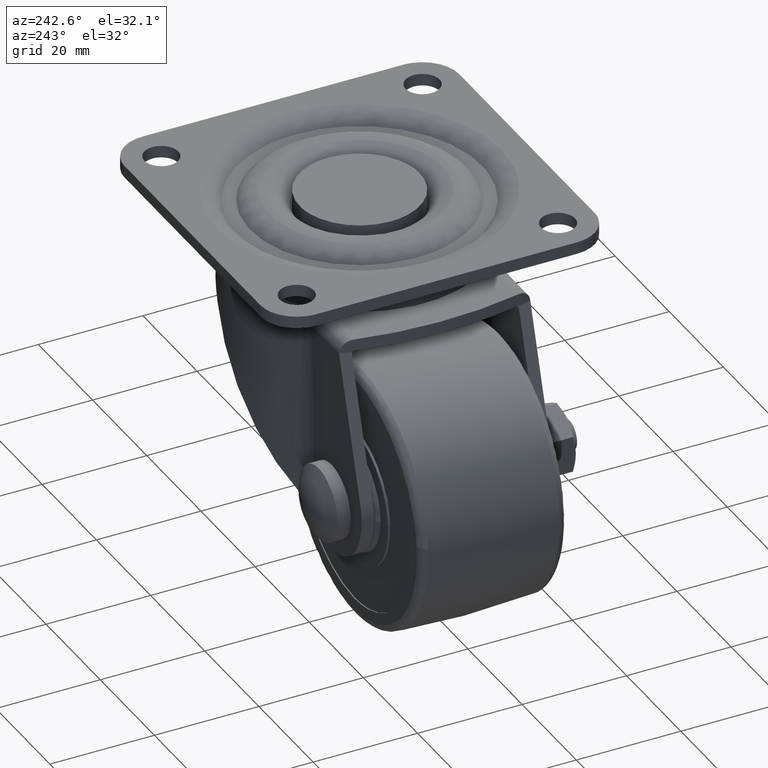
[diagram: clean part render]
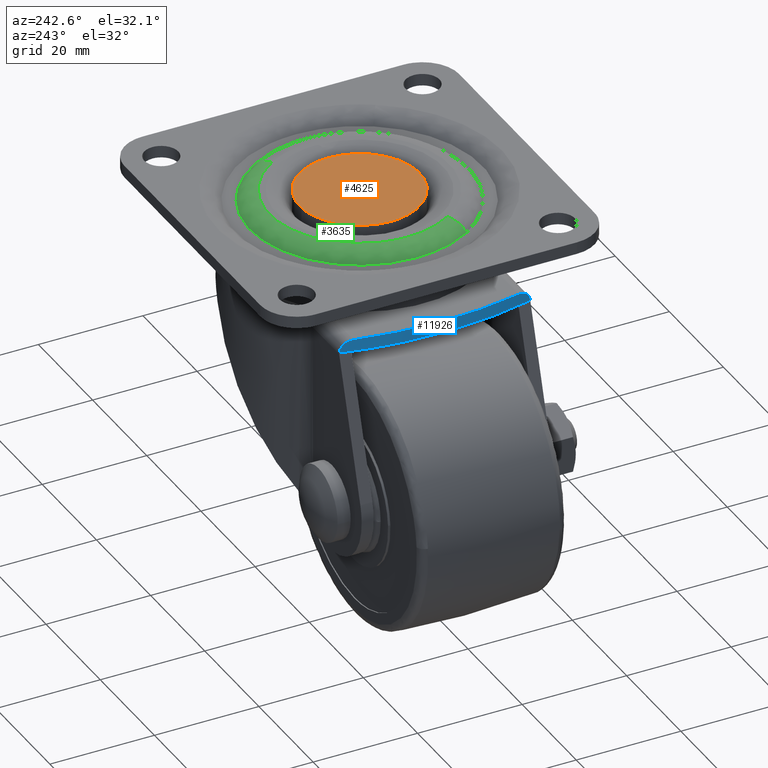
[diagram: same view with three faces highlighted in distinct colors, each labeled with its STEP entity id]
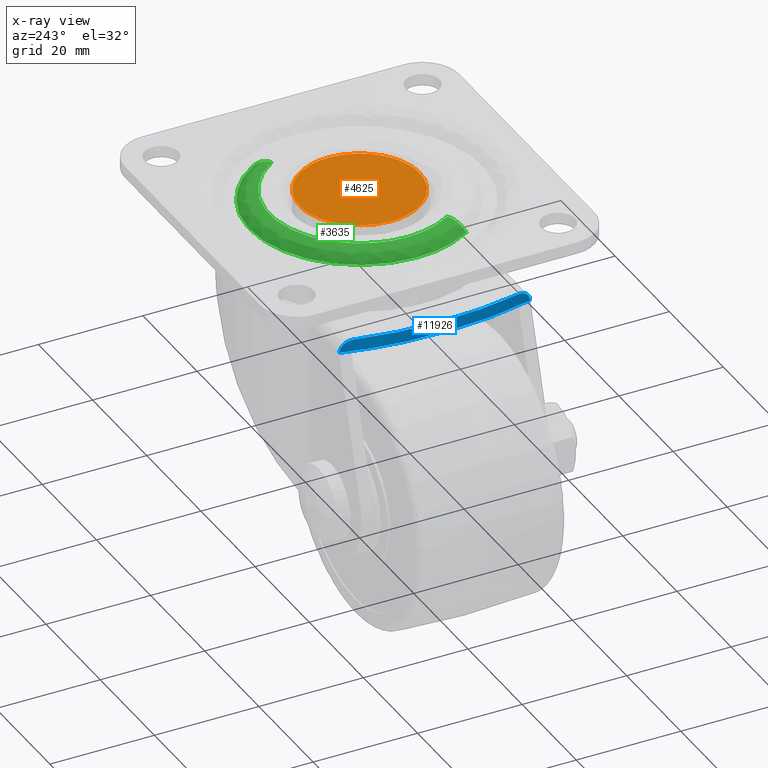
[diagram: x-ray of the same camera — body ghosted, the three highlighted faces saturated]
A machine part, auxiliary view with three faces highlighted in distinct colors.
The next image is the same camera in x-ray (body ghosted, the three faces saturated) — at least one of them is partly hidden behind the body in this view.
Their STEP definitions:

[orange] entity #4625 — the highlighted face is a freeform B-spline surface patch.
#4554=CARTESIAN_POINT('',(-12.648849955421539,-12.648566954055649,0.0));
#4555=CARTESIAN_POINT('',(12.648850572329611,-12.648566954055649,0.0));
#4556=CARTESIAN_POINT('',(-12.648849955421539,12.648566542783600,0.0));
#4557=CARTESIAN_POINT('',(12.648850572329611,12.648566542783600,0.0));
#4558=B_SPLINE_SURFACE_WITH_KNOTS('',1,1,((#4554,#4556),(#4555,#4557)),.UNSPECIFIED.,.F.,.F.,.U.,(2,2),(2,2),(0.0,25.297700527751150),(0.0,25.297133496839241),.UNSPECIFIED.);
#4559=CARTESIAN_POINT('',(0.702037677066017,-11.478551437335501,-3.885781E-016));
#4560=VERTEX_POINT('',#4559);
#4561=CARTESIAN_POINT('',(-11.500000000000000,0.0,0.0));
#4562=VERTEX_POINT('',#4561);
#4563=CARTESIAN_POINT('',(0.702037677066017,-11.478551437335495,-3.885781E-016));
#4564=CARTESIAN_POINT('',(0.351346485362978,-11.499999999981906,-3.829941E-016));
#4565=CARTESIAN_POINT('',(-1.088406E-012,-11.499999999982190,-3.770582E-016));
#4566=CARTESIAN_POINT('',(-11.500000000000526,-11.499999999991365,-1.827692E-016));
#4567=CARTESIAN_POINT('',(-11.500000000000000,0.0,0.0));
#4575=(BOUNDED_CURVE()B_SPLINE_CURVE(2,(#4563,#4564,#4565,#4566,#4567),.UNSPECIFIED.,.F.,.U.)B_SPLINE_CURVE_WITH_KNOTS((3,2,3),(0.739333270814883,0.750000000000000,1.0),.UNSPECIFIED.)CURVE()GEOMETRIC_REPRESENTATION_ITEM()RATIONAL_B_SPLINE_CURVE((0.976072703004588,0.987503149419038,1.0,0.707106781186548,1.0))REPRESENTATION_ITEM(''));
#4576=EDGE_CURVE('',#4560,#4562,#4575,.T.);
#4577=ORIENTED_EDGE('',*,*,#4576,.F.);
#4578=CARTESIAN_POINT('',(11.500000000000000,0.0,0.0));
#4579=VERTEX_POINT('',#4578);
#4580=CARTESIAN_POINT('',(11.500000000000000,0.0,0.0));
#4581=CARTESIAN_POINT('',(11.499999999999439,-10.818139152081802,-1.942890E-016));
#4582=CARTESIAN_POINT('',(0.702037677066017,-11.478551437335495,-3.885781E-016));
#4590=(BOUNDED_CURVE()B_SPLINE_CURVE(2,(#4580,#4581,#4582),.UNSPECIFIED.,.F.,.U.)B_SPLINE_CURVE_WITH_KNOTS((3,3),(0.500000000000000,0.739333270814883),.UNSPECIFIED.)CURVE()GEOMETRIC_REPRESENTATION_ITEM()RATIONAL_B_SPLINE_CURVE((1.0,0.719603631767509,0.976072703004588))REPRESENTATION_ITEM(''));
#4591=EDGE_CURVE('',#4579,#4560,#4590,.T.);
#4592=ORIENTED_EDGE('',*,*,#4591,.F.);
#4593=CARTESIAN_POINT('',(-0.702037677066017,11.478551437335501,-3.885781E-016));
#4594=VERTEX_POINT('',#4593);
#4595=CARTESIAN_POINT('',(-0.702037677066017,11.478551437335495,-3.885781E-016));
#4596=CARTESIAN_POINT('',(-0.351346485362977,11.499999999981906,-3.829941E-016));
#4597=CARTESIAN_POINT('',(1.090129E-012,11.499999999982190,-3.770582E-016));
#4598=CARTESIAN_POINT('',(11.500000000000526,11.499999999991365,-1.827692E-016));
#4599=CARTESIAN_POINT('',(11.500000000000000,0.0,0.0));
#4607=(BOUNDED_CURVE()B_SPLINE_CURVE(2,(#4595,#4596,#4597,#4598,#4599),.UNSPECIFIED.,.F.,.U.)B_SPLINE_CURVE_WITH_KNOTS((3,2,3),(0.239333270814883,0.250000000000000,0.500000000000000),.UNSPECIFIED.)CURVE()GEOMETRIC_REPRESENTATION_ITEM()RATIONAL_B_SPLINE_CURVE((0.976072703004588,0.987503149419038,1.0,0.707106781186548,1.0))REPRESENTATION_ITEM(''));
#4608=EDGE_CURVE('',#4594,#4579,#4607,.T.);
#4609=ORIENTED_EDGE('',*,*,#4608,.F.);
#4610=CARTESIAN_POINT('',(-11.500000000000000,0.0,0.0));
#4611=CARTESIAN_POINT('',(-11.499999999999437,10.818139152081800,-1.942890E-016));
#4612=CARTESIAN_POINT('',(-0.702037677066017,11.478551437335495,-3.885781E-016));
#4620=(BOUNDED_CURVE()B_SPLINE_CURVE(2,(#4610,#4611,#4612),.UNSPECIFIED.,.F.,.U.)B_SPLINE_CURVE_WITH_KNOTS((3,3),(0.0,0.239333270814883),.UNSPECIFIED.)CURVE()GEOMETRIC_REPRESENTATION_ITEM()RATIONAL_B_SPLINE_CURVE((1.0,0.719603631767509,0.976072703004588))REPRESENTATION_ITEM(''));
#4621=EDGE_CURVE('',#4562,#4594,#4620,.T.);
#4622=ORIENTED_EDGE('',*,*,#4621,.F.);
#4623=EDGE_LOOP('',(#4577,#4592,#4609,#4622));
#4624=FACE_OUTER_BOUND('',#4623,.T.);
#4625=ADVANCED_FACE('',(#4624),#4558,.T.);

[blue] entity #11926 — the highlighted face is a freeform B-spline surface patch.
#10395=CARTESIAN_POINT('',(-28.287115102895900,15.800003000000000,-9.799999999999999));
#10396=VERTEX_POINT('',#10395);
#10402=CARTESIAN_POINT('',(-28.287115761093951,-15.800003000000000,-9.799999999999999));
#10403=VERTEX_POINT('',#10402);
#10404=CARTESIAN_POINT('',(-28.287115761093961,-15.800003000000039,-9.799999999999999));
#10405=CARTESIAN_POINT('',(-31.753625819009837,0.000000072204107,-9.799999999999999));
#10406=CARTESIAN_POINT('',(-28.287115102895921,15.800003000000009,-9.799999999999999));
#10414=(BOUNDED_CURVE()B_SPLINE_CURVE(2,(#10404,#10405,#10406),.UNSPECIFIED.,.F.,.U.)CURVE()GEOMETRIC_REPRESENTATION_ITEM()QUASI_UNIFORM_CURVE()RATIONAL_B_SPLINE_CURVE((1.0,0.976767420641760,1.0))REPRESENTATION_ITEM(''));
#10415=EDGE_CURVE('',#10403,#10396,#10414,.T.);
#11148=CARTESIAN_POINT('',(-27.694823644004199,-18.291990158875450,-12.100000000000000));
#11149=VERTEX_POINT('',#11148);
#11150=CARTESIAN_POINT('',(-27.694823644004199,-18.291990158875450,-12.100000000000000));
#11151=CARTESIAN_POINT('',(-27.698079331294000,-18.279278069636899,-11.941608184275280));
#11152=CARTESIAN_POINT('',(-27.705111617788660,-18.251823072319048,-11.787149594436730));
#11153=CARTESIAN_POINT('',(-27.720975801822000,-18.189584163663628,-11.561074317916731));
#11154=CARTESIAN_POINT('',(-27.727155350313360,-18.165303771977339,-11.486657862475870));
#11155=CARTESIAN_POINT('',(-27.741302607532049,-18.109563232415621,-11.339737167524831));
#11156=CARTESIAN_POINT('',(-27.749314054713071,-18.077929192189639,-11.266944496927779));
#11157=CARTESIAN_POINT('',(-27.775526736068379,-17.974077232247119,-11.055810757704190));
#11158=CARTESIAN_POINT('',(-27.795973815432198,-17.892655187663049,-10.923429172277331));
#11159=CARTESIAN_POINT('',(-27.830781029138301,-17.752743149985790,-10.737040943530291));
#11160=CARTESIAN_POINT('',(-27.843077342238161,-17.703122931133830,-10.676955716006340));
#11161=CARTESIAN_POINT('',(-27.869056728442189,-17.597759991056609,-10.560974979711220));
#11162=CARTESIAN_POINT('',(-27.882548410719050,-17.542792364128541,-10.505936491248050));
#11163=CARTESIAN_POINT('',(-27.924368430733391,-17.371490871383902,-10.349528150751039));
#11164=CARTESIAN_POINT('',(-27.954051677119828,-17.248724411066540,-10.256697389991871));
#11165=CARTESIAN_POINT('',(-28.001074124600901,-17.051724435648950,-10.134552409252510));
#11166=CARTESIAN_POINT('',(-28.017246603562040,-16.983564761025800,-10.096559191599191));
#11167=CARTESIAN_POINT('',(-28.049850921718349,-16.845237267856302,-10.027676263472260));
#11168=CARTESIAN_POINT('',(-28.066316721297451,-16.774931457863659,-9.996658555376385));
#11169=CARTESIAN_POINT('',(-28.116155398697341,-16.560668295138878,-9.913609934930140));
#11170=CARTESIAN_POINT('',(-28.149963716022381,-16.413393213445602,-9.871498349639907));
#11171=CARTESIAN_POINT('',(-28.201466156028509,-16.185638662509671,-9.828714486195722));
#11172=CARTESIAN_POINT('',(-28.218730956055740,-16.108726596875659,-9.817931773636706));
#11173=CARTESIAN_POINT('',(-28.253017087508500,-15.954822694396469,-9.803601834278618));
#11174=CARTESIAN_POINT('',(-28.270098341773480,-15.877566680200511,-9.799999999999995));
#11175=CARTESIAN_POINT('',(-28.287115761093951,-15.800003000000000,-9.799999999999999));
#11176=B_SPLINE_CURVE_WITH_KNOTS('',3,(#11150,#11151,#11152,#11153,#11154,#11155,#11156,#11157,#11158,#11159,#11160,#11161,#11162,#11163,#11164,#11165,#11166,#11167,#11168,#11169,#11170,#11171,#11172,#11173,#11174,#11175),.UNSPECIFIED.,.F.,.U.,(4,2,2,2,2,2,2,2,2,2,2,2,4),(0.0,0.125000000000001,0.187500000000002,0.250000000000003,0.375000000000004,0.437500000000005,0.500000000000006,0.625000000000005,0.687500000000005,0.750000000000004,0.875000000000003,0.937500000000002,1.0),.UNSPECIFIED.);
#11177=EDGE_CURVE('',#11149,#10403,#11176,.T.);
#11432=CARTESIAN_POINT('',(-27.694822875675499,18.291990158875450,-12.100000000000000));
#11433=VERTEX_POINT('',#11432);
#11434=CARTESIAN_POINT('',(-28.287115102895900,15.800003000000000,-9.799999999999999));
#11435=CARTESIAN_POINT('',(-28.253055916265559,15.955241305185741,-9.799999999999999));
#11436=CARTESIAN_POINT('',(-28.219017581453631,16.107988186368779,-9.814332629383635));
#11437=CARTESIAN_POINT('',(-28.168023586680949,16.333540899109479,-9.856398846311816));
#11438=CARTESIAN_POINT('',(-28.151036943839440,16.408126724459859,-9.873871676787271));
#11439=CARTESIAN_POINT('',(-28.125585310654628,16.519095501924269,-9.905342561051208));
#11440=CARTESIAN_POINT('',(-28.117106207321150,16.555933204051300,-9.916711185808580));
#11441=CARTESIAN_POINT('',(-28.100160120496430,16.629299847201409,-9.941237022405858));
#11442=CARTESIAN_POINT('',(-28.091678412722739,16.665891567365851,-9.954422584665064));
#11443=CARTESIAN_POINT('',(-28.049722624038459,16.846282637594790,-10.024205264365561));
#11444=CARTESIAN_POINT('',(-28.017306875913459,16.983689805945261,-10.092629922747690));
#11445=CARTESIAN_POINT('',(-27.970530544939230,17.179695326031698,-10.213771737412520));
#11446=CARTESIAN_POINT('',(-27.955248583855479,17.243335524276649,-10.257256326116931));
#11447=CARTESIAN_POINT('',(-27.925355413514779,17.367135256760061,-10.350613690761570));
#11448=CARTESIAN_POINT('',(-27.910695787790889,17.427490310000611,-10.400706516186521));
#11449=CARTESIAN_POINT('',(-27.868679032599928,17.599606282469459,-10.557716798794649));
#11450=CARTESIAN_POINT('',(-27.842994592517179,17.703632684453659,-10.672034110036011));
#11451=CARTESIAN_POINT('',(-27.808162960632369,17.843662851449938,-10.857961810430570));
#11452=CARTESIAN_POINT('',(-27.797171924446818,17.887654410531908,-10.922361560217730));
#11453=CARTESIAN_POINT('',(-27.781677509756040,17.949458452310129,-11.022743064532561));
#11454=CARTESIAN_POINT('',(-27.776675843809510,17.969371108191542,-11.056864992342060));
#11455=CARTESIAN_POINT('',(-27.767120464016489,18.007351539874399,-11.125625673127351));
#11456=CARTESIAN_POINT('',(-27.762552108056610,18.025477803862120,-11.160355110115450));
#11457=CARTESIAN_POINT('',(-27.740752440795951,18.111848689339670,-11.335724753340370));
#11458=CARTESIAN_POINT('',(-27.726622724097279,18.167424477776599,-11.481487130475440));
#11459=CARTESIAN_POINT('',(-27.710603785511150,18.230274211951350,-11.708439538919039));
#11460=CARTESIAN_POINT('',(-27.706121055092829,18.247824303619421,-11.785732736702810));
#11461=CARTESIAN_POINT('',(-27.699041354379879,18.275516455456209,-11.942043180805920));
#11462=CARTESIAN_POINT('',(-27.696451909707150,18.285629467408270,-12.020746192711220));
#11463=CARTESIAN_POINT('',(-27.694822875675499,18.291990158875450,-12.100000000000000));
#11464=B_SPLINE_CURVE_WITH_KNOTS('',3,(#11434,#11435,#11436,#11437,#11438,#11439,#11440,#11441,#11442,#11443,#11444,#11445,#11446,#11447,#11448,#11449,#11450,#11451,#11452,#11453,#11454,#11455,#11456,#11457,#11458,#11459,#11460,#11461,#11462,#11463),.UNSPECIFIED.,.F.,.U.,(4,2,2,2,2,2,2,2,2,2,2,2,2,2,4),(0.0,0.124999999999996,0.187499999999993,0.218749999999992,0.249999999999990,0.374999999999990,0.437499999999990,0.499999999999990,0.624999999999989,0.687499999999990,0.718749999999990,0.749999999999991,0.874999999999994,0.937499999999997,1.0),.UNSPECIFIED.);
#11465=EDGE_CURVE('',#10396,#11433,#11464,.T.);
#11894=CARTESIAN_POINT('',(-27.221917923576157,20.048076869148826,-9.742499999999998));
#11895=CARTESIAN_POINT('',(-27.221917923576157,20.048076869148826,-12.158937500000002));
#11896=CARTESIAN_POINT('',(-32.888545649674406,-0.005967555362892,-9.742500000000000));
#11897=CARTESIAN_POINT('',(-32.888545649674406,-0.005967555362892,-12.158937499999999));
#11898=CARTESIAN_POINT('',(-27.218794802365945,-20.059129223686412,-9.742499999999998));
#11899=CARTESIAN_POINT('',(-27.218794802365945,-20.059129223686412,-12.158937500000004));
#11907=(BOUNDED_SURFACE()B_SPLINE_SURFACE(1,2,((#11894,#11896,#11898),(#11895,#11897,#11899)),.UNSPECIFIED.,.F.,.F.,.U.)B_SPLINE_SURFACE_WITH_KNOTS((2,2),(3,3),(0.0,2.416437500000003),(0.468975695502758,41.352634039986143),.UNSPECIFIED.)GEOMETRIC_REPRESENTATION_ITEM()RATIONAL_B_SPLINE_SURFACE(((0.999053499045756,0.958227885709969,0.992497065193561),(0.999053499045756,0.958227885709969,0.992497065193561)))REPRESENTATION_ITEM('')SURFACE());
#11908=ORIENTED_EDGE('',*,*,#10415,.T.);
#11909=ORIENTED_EDGE('',*,*,#11465,.T.);
#11910=CARTESIAN_POINT('',(-27.694823644004192,-18.291990158875489,-12.100000000000000));
#11911=CARTESIAN_POINT('',(-32.379576800464420,0.000000098388141,-12.100000000000003));
#11912=CARTESIAN_POINT('',(-27.694822875675531,18.291990158875421,-12.100000000000000));
#11920=(BOUNDED_CURVE()B_SPLINE_CURVE(2,(#11910,#11911,#11912),.UNSPECIFIED.,.F.,.U.)CURVE()GEOMETRIC_REPRESENTATION_ITEM()QUASI_UNIFORM_CURVE()RATIONAL_B_SPLINE_CURVE((1.0,0.968733910882907,1.0))REPRESENTATION_ITEM(''));
#11921=EDGE_CURVE('',#11149,#11433,#11920,.T.);
#11922=ORIENTED_EDGE('',*,*,#11921,.F.);
#11923=ORIENTED_EDGE('',*,*,#11177,.T.);
#11924=EDGE_LOOP('',(#11908,#11909,#11922,#11923));
#11925=FACE_OUTER_BOUND('',#11924,.T.);
#11926=ADVANCED_FACE('',(#11925),#11907,.T.);

[green] entity #3635 — the highlighted face is a freeform B-spline surface patch.
#3114=CARTESIAN_POINT('',(-17.258342613225999,0.0,0.0));
#3115=VERTEX_POINT('',#3114);
#3116=CARTESIAN_POINT('',(-14.571700617546950,-9.247482410052445,-9.702723E-016));
#3117=VERTEX_POINT('',#3116);
#3118=CARTESIAN_POINT('',(-17.258342613225999,0.0,0.0));
#3119=CARTESIAN_POINT('',(-17.258342613912820,-5.014012032314377,-4.851361E-016));
#3120=CARTESIAN_POINT('',(-14.571700617546945,-9.247482410052445,-9.702723E-016));
#3128=(BOUNDED_CURVE()B_SPLINE_CURVE(2,(#3118,#3119,#3120),.UNSPECIFIED.,.F.,.U.)B_SPLINE_CURVE_WITH_KNOTS((3,3),(0.0,0.091683542669295),.UNSPECIFIED.)CURVE()GEOMETRIC_REPRESENTATION_ITEM()RATIONAL_B_SPLINE_CURVE((1.0,0.892586048301478,0.863956829593589))REPRESENTATION_ITEM(''));
#3129=EDGE_CURVE('',#3115,#3117,#3128,.T.);
#3158=CARTESIAN_POINT('',(14.571700617546950,9.247482410052443,-1.030914E-015));
#3159=VERTEX_POINT('',#3158);
#3173=CARTESIAN_POINT('',(14.571700617546950,9.247482410052443,-1.030914E-015));
#3174=CARTESIAN_POINT('',(14.106447365856580,9.980668203776377,-1.023381E-015));
#3175=CARTESIAN_POINT('',(13.012915794810739,11.446431158046350,-1.003439E-015));
#3176=CARTESIAN_POINT('',(11.201207451834311,13.207934759154529,-9.646130E-016));
#3177=CARTESIAN_POINT('',(9.370820724143078,14.536680304505071,-9.214744E-016));
#3178=CARTESIAN_POINT('',(7.781365946379898,15.435667096370610,-8.818026E-016));
#3179=CARTESIAN_POINT('',(6.138617688706101,16.162645974991371,-8.390466E-016));
#3180=CARTESIAN_POINT('',(4.207986996546056,16.788537751807191,-7.868152E-016));
#3181=CARTESIAN_POINT('',(2.238784144303349,17.152300925482191,-7.311572E-016));
#3182=CARTESIAN_POINT('',(0.273155869657626,17.284029508214338,-6.735926E-016));
#3183=CARTESIAN_POINT('',(-1.784055344068558,17.219953320087061,-6.115936E-016));
#3184=CARTESIAN_POINT('',(-4.332551386353629,16.790386474861130,-5.317499E-016));
#3185=CARTESIAN_POINT('',(-6.884134320174475,15.900419970332271,-4.478190E-016));
#3186=CARTESIAN_POINT('',(-9.188762997473559,14.673992394291190,-3.683444E-016));
#3187=CARTESIAN_POINT('',(-10.927381005979329,13.413239786684050,-3.054771E-016));
#3188=CARTESIAN_POINT('',(-12.520330435066519,11.934727541929069,-2.450709E-016));
#3189=CARTESIAN_POINT('',(-13.839353690472100,10.390567361550570,-1.922765E-016));
#3190=CARTESIAN_POINT('',(-14.885950829097171,8.788232803884437,-1.471138E-016));
#3191=CARTESIAN_POINT('',(-15.729405139234300,7.170040259969671,-1.078809E-016));
#3192=CARTESIAN_POINT('',(-16.562729871460419,5.098527142787555,-6.501691E-017));
#3193=CARTESIAN_POINT('',(-17.137076422820520,2.605042599938792,-2.622636E-017));
#3194=CARTESIAN_POINT('',(-17.258351623457511,0.752554847026910,-6.529802E-018));
#3195=CARTESIAN_POINT('',(-17.258342613225999,0.0,0.0));
#3196=B_SPLINE_CURVE_WITH_KNOTS('',3,(#3173,#3174,#3175,#3176,#3177,#3178,#3179,#3180,#3181,#3182,#3183,#3184,#3185,#3186,#3187,#3188,#3189,#3190,#3191,#3192,#3193,#3194,#3195),.UNSPECIFIED.,.F.,.U.,(4,1,1,1,1,1,1,1,1,1,1,1,1,1,1,1,1,1,1,1,4),(0.000000093690936,2.605036067321713,5.470594533878376,7.554636096495244,9.378155612762932,10.941186624970090,12.938373448052261,15.456622165867930,16.932802473602091,18.843079768247179,21.621800254466720,24.661047423322980,26.918749867005609,29.436963435383440,31.086823821349331,33.431372240237494,35.515413262754350,36.817941294221853,38.901948555361237,42.201691522053963,44.459366437906453),.UNSPECIFIED.);
#3197=EDGE_CURVE('',#3159,#3115,#3196,.T.);
#3490=CARTESIAN_POINT('',(-17.730886435539631,-11.252362694556149,-1.999999999994471));
#3491=VERTEX_POINT('',#3490);
#3492=CARTESIAN_POINT('',(-17.730886435539638,-11.252362694556144,-1.999999999994470));
#3493=CARTESIAN_POINT('',(-16.602605786247029,-10.536334021530543,-8.696141E-010));
#3494=CARTESIAN_POINT('',(-14.571700617546950,-9.247482410052445,-9.702723E-016));
#3502=(BOUNDED_CURVE()B_SPLINE_CURVE(2,(#3492,#3493,#3494),.UNSPECIFIED.,.F.,.U.)B_SPLINE_CURVE_WITH_KNOTS((3,3),(-1.614008289725891,-0.371524495184355),.UNSPECIFIED.)CURVE()GEOMETRIC_REPRESENTATION_ITEM()RATIONAL_B_SPLINE_CURVE((0.912877125477015,0.806189653344176,0.915390887314688))REPRESENTATION_ITEM(''));
#3503=EDGE_CURVE('',#3491,#3117,#3502,.T.);
#3533=CARTESIAN_POINT('',(17.730886435539631,11.252362694556140,-1.999999999994471));
#3534=VERTEX_POINT('',#3533);
#3548=CARTESIAN_POINT('',(17.730886435539638,11.252362694556144,-1.999999999994472));
#3549=CARTESIAN_POINT('',(16.602605786247032,10.536334021530541,-8.696123E-010));
#3550=CARTESIAN_POINT('',(14.571700617546947,9.247482410052443,-1.030914E-015));
#3558=(BOUNDED_CURVE()B_SPLINE_CURVE(2,(#3548,#3549,#3550),.UNSPECIFIED.,.F.,.U.)B_SPLINE_CURVE_WITH_KNOTS((3,3),(-1.614008289725891,-0.371524495184354),.UNSPECIFIED.)CURVE()GEOMETRIC_REPRESENTATION_ITEM()RATIONAL_B_SPLINE_CURVE((0.912877125477015,0.806189653344176,0.915390887314688))REPRESENTATION_ITEM(''));
#3559=EDGE_CURVE('',#3534,#3159,#3558,.T.);
#3565=CARTESIAN_POINT('',(17.826326384439820,11.312930727885908,-2.178075291639832));
#3566=CARTESIAN_POINT('',(6.513395656553909,29.139257112325733,-2.178075291639832));
#3567=CARTESIAN_POINT('',(-11.312930727885908,17.826326384439820,-2.178075291639832));
#3568=CARTESIAN_POINT('',(-29.139257112325733,6.513395656553911,-2.178075291639832));
#3569=CARTESIAN_POINT('',(-17.826326384439820,-11.312930727885908,-2.178075291639832));
#3570=CARTESIAN_POINT('',(16.657308838730422,10.571049634211032,0.120462497382901));
#3571=CARTESIAN_POINT('',(6.086259204519395,27.228358472941455,0.120462497382901));
#3572=CARTESIAN_POINT('',(-10.571049634211029,16.657308838730422,0.120462497382901));
#3573=CARTESIAN_POINT('',(-27.228358472941455,6.086259204519397,0.120462497382901));
#3574=CARTESIAN_POINT('',(-16.657308838730437,-10.571049634211029,0.120462497382901));
#3575=CARTESIAN_POINT('',(14.394171966331928,9.134819302003235,-0.004914839208650));
#3576=CARTESIAN_POINT('',(5.259352664328691,23.528991268335162,-0.004914839208650));
#3577=CARTESIAN_POINT('',(-9.134819302003233,14.394171966331928,-0.004914839208650));
#3578=CARTESIAN_POINT('',(-23.528991268335162,5.259352664328692,-0.004914839208650));
#3579=CARTESIAN_POINT('',(-14.394171966331928,-9.134819302003233,-0.004914839208650));
#3587=(BOUNDED_SURFACE()B_SPLINE_SURFACE(2,2,((#3565,#3570,#3575),(#3566,#3571,#3576),(#3567,#3572,#3577),(#3568,#3573,#3578),(#3569,#3574,#3579)),.UNSPECIFIED.,.F.,.F.,.U.)B_SPLINE_SURFACE_WITH_KNOTS((3,2,3),(3,3),(0.0,34.981224392567803,69.962448785135592),(0.0,4.959281415207913),.UNSPECIFIED.)GEOMETRIC_REPRESENTATION_ITEM()RATIONAL_B_SPLINE_SURFACE(((0.924073850440199,0.794867366459453,0.926838736098646),(0.653418885963428,0.562056104967372,0.655373955361721),(0.924073850440199,0.794867366459453,0.926838736098646),(0.653418885963428,0.562056104967372,0.655373955361721),(0.924073850440199,0.794867366459453,0.926838736098646)))REPRESENTATION_ITEM('')SURFACE());
#3588=ORIENTED_EDGE('',*,*,#3129,.F.);
#3589=ORIENTED_EDGE('',*,*,#3197,.F.);
#3590=ORIENTED_EDGE('',*,*,#3559,.F.);
#3591=CARTESIAN_POINT('',(-21.0,0.0,-2.000000000000093));
#3592=VERTEX_POINT('',#3591);
#3593=CARTESIAN_POINT('',(-21.0,0.0,-2.000000000000093));
#3594=CARTESIAN_POINT('',(-21.000056931859291,1.021379983838366,-2.000000000000061));
#3595=CARTESIAN_POINT('',(-20.873825223837120,2.747142109839462,-1.999999999999963));
#3596=CARTESIAN_POINT('',(-20.323829382948439,5.514191518452936,-1.999999999999767));
#3597=CARTESIAN_POINT('',(-19.422690625568681,8.192882604435592,-1.999999999999628));
#3598=CARTESIAN_POINT('',(-17.919306575442000,11.112811847302121,-1.999999999999153));
#3599=CARTESIAN_POINT('',(-16.083390484246820,13.623190818193811,-1.999999999999074));
#3600=CARTESIAN_POINT('',(-14.072943864021450,15.655857653359471,-1.999999999998305));
#3601=CARTESIAN_POINT('',(-11.999558716883110,17.299071037936219,-1.999999999998437));
#3602=CARTESIAN_POINT('',(-9.979334762144742,18.529070798282021,-1.999999999997810));
#3603=CARTESIAN_POINT('',(-7.867811216528370,19.506860475354681,-1.999999999997581));
#3604=CARTESIAN_POINT('',(-5.936294719238354,20.180505875355511,-1.999999999997299));
#3605=CARTESIAN_POINT('',(-3.844504141313764,20.681201178078901,-1.999999999996992));
#3606=CARTESIAN_POINT('',(-1.677512239251991,20.974028903734730,-1.999999999996690));
#3607=CARTESIAN_POINT('',(0.896620823132621,21.041357055757882,-1.999999999996344));
#3608=CARTESIAN_POINT('',(3.917562565353067,20.724043146925201,-1.999999999995951));
#3609=CARTESIAN_POINT('',(7.226156081372923,19.823746369244891,-1.999999999995544));
#3610=CARTESIAN_POINT('',(10.047547707975900,18.515215583459010,-1.999999999995217));
#3611=CARTESIAN_POINT('',(12.274392230024841,17.087514624661321,-1.999999999994976));
#3612=CARTESIAN_POINT('',(13.842943356187890,15.830075576598921,-1.999999999994813));
#3613=CARTESIAN_POINT('',(15.772862965825180,13.972502512733010,-1.999999999994629));
#3614=CARTESIAN_POINT('',(16.976187194800708,12.441997425442210,-1.999999999994526));
#3615=CARTESIAN_POINT('',(17.730886435539631,11.252362694556140,-1.999999999994471));
#3616=B_SPLINE_CURVE_WITH_KNOTS('',3,(#3593,#3594,#3595,#3596,#3597,#3598,#3599,#3600,#3601,#3602,#3603,#3604,#3605,#3606,#3607,#3608,#3609,#3610,#3611,#3612,#3613,#3614,#3615),.UNSPECIFIED.,.F.,.U.,(4,1,1,1,1,1,1,1,1,1,1,1,1,1,1,1,1,1,1,1,4),(1.189576E-009,3.064134374151806,5.177345600228691,8.452833924074433,11.517023038451770,15.003826919832500,17.751012413434069,20.075551471777011,22.928409572346119,24.830311160826671,27.049181709627529,29.056715920525310,31.275589392435521,33.600106389552252,36.769927883466309,40.362388558336256,43.849196056964630,46.068070463314221,48.286946899526313,49.871857873521250,54.098282557909087),.UNSPECIFIED.);
#3617=EDGE_CURVE('',#3592,#3534,#3616,.T.);
#3618=ORIENTED_EDGE('',*,*,#3617,.F.);
#3619=CARTESIAN_POINT('',(-17.730886435539631,-11.252362694556147,-1.999999999994471));
#3620=CARTESIAN_POINT('',(-20.999999999998408,-6.101063991368743,-1.999999999997282));
#3621=CARTESIAN_POINT('',(-21.0,0.0,-2.000000000000093));
#3629=(BOUNDED_CURVE()B_SPLINE_CURVE(2,(#3619,#3620,#3621),.UNSPECIFIED.,.F.,.U.)B_SPLINE_CURVE_WITH_KNOTS((3,3),(0.908316457331617,1.0),.UNSPECIFIED.)CURVE()GEOMETRIC_REPRESENTATION_ITEM()RATIONAL_B_SPLINE_CURVE((0.863956829594158,0.892586048302547,1.0))REPRESENTATION_ITEM(''));
#3630=EDGE_CURVE('',#3491,#3592,#3629,.T.);
#3631=ORIENTED_EDGE('',*,*,#3630,.F.);
#3632=ORIENTED_EDGE('',*,*,#3503,.T.);
#3633=EDGE_LOOP('',(#3588,#3589,#3590,#3618,#3631,#3632));
#3634=FACE_OUTER_BOUND('',#3633,.T.);
#3635=ADVANCED_FACE('',(#3634),#3587,.T.);